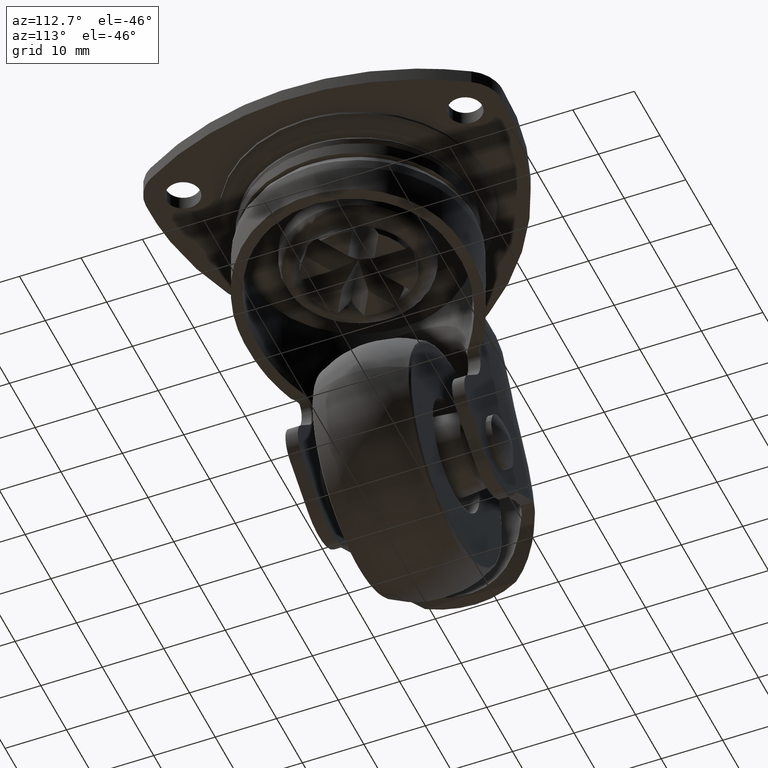
[diagram: clean part render]
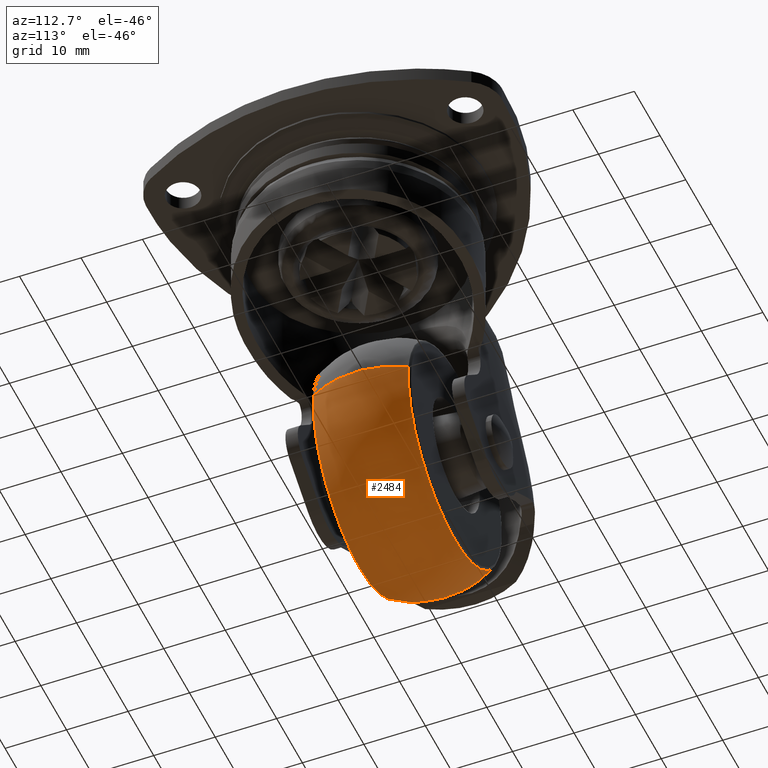
[diagram: same view with one face highlighted and labeled with its STEP entity id]
A machine part, auxiliary view. The second image highlights one B-rep face of the part: STEP entity #2484.
In plain terms, the highlighted face is a freeform B-spline surface patch.
Its self-contained STEP definition (entity closure, byte-faithful):
#1848=CARTESIAN_POINT('',(-6.583102481280289,7.741936135025106,-56.755388262646562));
#1849=VERTEX_POINT('',#1848);
#1863=CARTESIAN_POINT('',(-15.883204037254799,7.741950440309198,-31.526282511121970));
#1864=VERTEX_POINT('',#1863);
#1865=CARTESIAN_POINT('',(-6.583102481280288,7.741936135025106,-56.755388262646562));
#1866=CARTESIAN_POINT('',(-18.002229059907609,7.741938576398435,-52.268876010028563));
#1867=CARTESIAN_POINT('',(-18.002228438981501,7.741945580525633,-40.000006500542682));
#1868=CARTESIAN_POINT('',(-18.002228211145198,7.741948150548680,-35.498192566793705));
#1869=CARTESIAN_POINT('',(-15.883204037254806,7.741950440309198,-31.526282511121966));
#1877=(BOUNDED_CURVE()B_SPLINE_CURVE(2,(#1865,#1866,#1867,#1868,#1869),.UNSPECIFIED.,.F.,.U.)B_SPLINE_CURVE_WITH_KNOTS((3,2,3),(0.562091870105445,0.750000000000000,0.830114600128736),.UNSPECIFIED.)CURVE()GEOMETRIC_REPRESENTATION_ITEM()RATIONAL_B_SPLINE_CURVE((0.890644758050249,0.779851931975869,1.0,0.906139907577367,0.872436325334618))REPRESENTATION_ITEM(''));
#1878=EDGE_CURVE('',#1849,#1864,#1877,.T.);
#1971=CARTESIAN_POINT('',(0.0,7.741957127476519,-21.997782324370629));
#1972=VERTEX_POINT('',#1971);
#1973=CARTESIAN_POINT('',(-15.883204037254806,7.741950440309198,-31.526282511121966));
#1974=CARTESIAN_POINT('',(-10.799726583100981,7.741956639457517,-21.997782739919185));
#1975=CARTESIAN_POINT('',(0.0,7.741957127476519,-21.997782324370629));
#1983=(BOUNDED_CURVE()B_SPLINE_CURVE(2,(#1973,#1974,#1975),.UNSPECIFIED.,.F.,.U.)B_SPLINE_CURVE_WITH_KNOTS((3,3),(0.830114600128736,1.0),.UNSPECIFIED.)CURVE()GEOMETRIC_REPRESENTATION_ITEM()RATIONAL_B_SPLINE_CURVE((0.872436325334618,0.800966873609180,1.0))REPRESENTATION_ITEM(''));
#1984=EDGE_CURVE('',#1864,#1972,#1983,.T.);
#1986=CARTESIAN_POINT('',(17.881824193208271,7.741935547322694,-37.921386432191142));
#1987=VERTEX_POINT('',#1986);
#2001=CARTESIAN_POINT('',(0.0,7.741935547366899,-58.002229607473851));
#2002=VERTEX_POINT('',#2001);
#2003=CARTESIAN_POINT('',(17.881824193208274,7.741935547322695,-37.921386432191142));
#2004=CARTESIAN_POINT('',(18.002229607473851,7.741935547366899,-38.957205924366598));
#2005=CARTESIAN_POINT('',(18.002229607473851,7.741935547366899,-40.0));
#2006=CARTESIAN_POINT('',(18.002229607473854,7.741935547366898,-58.002229607473836));
#2007=CARTESIAN_POINT('',(0.0,7.741935547366899,-58.002229607473851));
#2015=(BOUNDED_CURVE()B_SPLINE_CURVE(2,(#2003,#2004,#2005,#2006,#2007),.UNSPECIFIED.,.F.,.U.)B_SPLINE_CURVE_WITH_KNOTS((3,2,3),(0.229999999999810,0.250000000000000,0.500000000000000),.UNSPECIFIED.)CURVE()GEOMETRIC_REPRESENTATION_ITEM()RATIONAL_B_SPLINE_CURVE((0.956886118190286,0.976568542494701,1.0,0.707106781186547,1.0))REPRESENTATION_ITEM(''));
#2016=EDGE_CURVE('',#1987,#2002,#2015,.T.);
#2018=CARTESIAN_POINT('',(0.0,7.741935547366899,-58.002229607473851));
#2019=CARTESIAN_POINT('',(-3.409627358578136,7.741935547366899,-58.002229607473843));
#2020=CARTESIAN_POINT('',(-6.583102481280289,7.741936135025106,-56.755388262646548));
#2028=(BOUNDED_CURVE()B_SPLINE_CURVE(2,(#2018,#2019,#2020),.UNSPECIFIED.,.F.,.U.)B_SPLINE_CURVE_WITH_KNOTS((3,3),(0.500000000000000,0.562091870105445),.UNSPECIFIED.)CURVE()GEOMETRIC_REPRESENTATION_ITEM()RATIONAL_B_SPLINE_CURVE((1.0,0.927254849210678,0.890644758050248))REPRESENTATION_ITEM(''));
#2029=EDGE_CURVE('',#2002,#1849,#2028,.T.);
#2058=CARTESIAN_POINT('',(-15.665247768531840,-7.741936419467464,-48.870190745649680));
#2059=VERTEX_POINT('',#2058);
#2060=CARTESIAN_POINT('',(0.0,-7.741939943948433,-21.997772798119961));
#2061=VERTEX_POINT('',#2060);
#2062=CARTESIAN_POINT('',(-15.665247768531840,-7.741936419467464,-48.870190745649687));
#2063=CARTESIAN_POINT('',(-18.002229675233554,-7.741937127626840,-44.742952079038680));
#2064=CARTESIAN_POINT('',(-18.002229675233551,-7.741937714901827,-40.000001236676752));
#2065=CARTESIAN_POINT('',(-18.002229675233544,-7.741939943948433,-21.997772798119961));
#2066=CARTESIAN_POINT('',(0.0,-7.741939943948433,-21.997772798119961));
#2074=(BOUNDED_CURVE()B_SPLINE_CURVE(2,(#2062,#2063,#2064,#2065,#2066),.UNSPECIFIED.,.F.,.U.)B_SPLINE_CURVE_WITH_KNOTS((3,2,3),(0.666016366175468,0.750000000000000,1.0),.UNSPECIFIED.)CURVE()GEOMETRIC_REPRESENTATION_ITEM()RATIONAL_B_SPLINE_CURVE((0.869321283383865,0.901607052645930,1.0,0.707106781186548,1.0))REPRESENTATION_ITEM(''));
#2075=EDGE_CURVE('',#2059,#2061,#2074,.T.);
#2178=CARTESIAN_POINT('',(0.0,-7.741935485855220,-58.002229675233551));
#2179=VERTEX_POINT('',#2178);
#2180=CARTESIAN_POINT('',(0.0,-7.741935485855220,-58.002229675233551));
#2181=CARTESIAN_POINT('',(-10.494380266970438,-7.741935485855221,-58.002229675233551));
#2182=CARTESIAN_POINT('',(-15.665247768531831,-7.741936419467464,-48.870190745649687));
#2190=(BOUNDED_CURVE()B_SPLINE_CURVE(2,(#2180,#2181,#2182),.UNSPECIFIED.,.F.,.U.)B_SPLINE_CURVE_WITH_KNOTS((3,3),(0.500000000000000,0.666016366175468),.UNSPECIFIED.)CURVE()GEOMETRIC_REPRESENTATION_ITEM()RATIONAL_B_SPLINE_CURVE((1.0,0.805499728540618,0.869321283383865))REPRESENTATION_ITEM(''));
#2191=EDGE_CURVE('',#2179,#2059,#2190,.T.);
#2193=CARTESIAN_POINT('',(17.881824247661068,-7.741935478695812,-37.921386425865101));
#2194=VERTEX_POINT('',#2193);
#2195=CARTESIAN_POINT('',(17.881824247661072,-7.741935478695812,-37.921386425865101));
#2196=CARTESIAN_POINT('',(18.002229675233547,-7.741935485855222,-38.957205920445190));
#2197=CARTESIAN_POINT('',(18.002229675233551,-7.741935485855220,-40.0));
#2198=CARTESIAN_POINT('',(18.002229675233544,-7.741935485855221,-58.002229675233544));
#2199=CARTESIAN_POINT('',(0.0,-7.741935485855220,-58.002229675233551));
#2207=(BOUNDED_CURVE()B_SPLINE_CURVE(2,(#2195,#2196,#2197,#2198,#2199),.UNSPECIFIED.,.F.,.U.)B_SPLINE_CURVE_WITH_KNOTS((3,2,3),(0.229999999999878,0.250000000000000,0.500000000000000),.UNSPECIFIED.)CURVE()GEOMETRIC_REPRESENTATION_ITEM()RATIONAL_B_SPLINE_CURVE((0.956886118190420,0.976568542494781,1.0,0.707106781186548,1.0))REPRESENTATION_ITEM(''));
#2208=EDGE_CURVE('',#2194,#2179,#2207,.T.);
#2414=CARTESIAN_POINT('',(17.496555866815406,8.405296508026964,-37.966171113185844));
#2415=CARTESIAN_POINT('',(22.651138917050353,0.000011710979316,-37.366993767264077));
#2416=CARTESIAN_POINT('',(17.496566266471842,-8.405279549876294,-37.966169904312416));
#2417=CARTESIAN_POINT('',(17.614367066160280,8.405296508026964,-38.979673401622293));
#2418=CARTESIAN_POINT('',(22.803657953520059,0.000011710979316,-38.679079488755335));
#2419=CARTESIAN_POINT('',(17.614377535841715,-8.405279549876294,-38.979672795157477));
#2420=CARTESIAN_POINT('',(17.614367066160284,8.405296508026964,-39.999999999999993));
#2421=CARTESIAN_POINT('',(22.803657953520073,0.000011710979316,-40.000000000000007));
#2422=CARTESIAN_POINT('',(17.614377535841708,-8.405279549876292,-40.0));
#2423=CARTESIAN_POINT('',(17.614367066160295,8.405296508026964,-57.614367066160298));
#2424=CARTESIAN_POINT('',(22.803657953520066,0.000011710979316,-62.803657953520080));
#2425=CARTESIAN_POINT('',(17.614377535841708,-8.405279549876294,-57.614377535841719));
#2426=CARTESIAN_POINT('',(0.0,8.405296508026964,-57.614367066160291));
#2427=CARTESIAN_POINT('',(0.0,0.000011710979316,-62.803657953520094));
#2428=CARTESIAN_POINT('',(0.0,-8.405279549876292,-57.614377535841719));
#2429=CARTESIAN_POINT('',(-17.614367066160295,8.405296508026964,-57.614367066160298));
#2430=CARTESIAN_POINT('',(-22.803657953520066,0.000011710979316,-62.803657953520080));
#2431=CARTESIAN_POINT('',(-17.614377535841708,-8.405279549876294,-57.614377535841719));
#2432=CARTESIAN_POINT('',(-17.614367066160284,8.405296508026964,-39.999999999999993));
#2433=CARTESIAN_POINT('',(-22.803657953520073,0.000011710979316,-40.000000000000007));
#2434=CARTESIAN_POINT('',(-17.614377535841708,-8.405279549876292,-40.0));
#2435=CARTESIAN_POINT('',(-17.614367066160295,8.405296508026964,-22.385632933839709));
#2436=CARTESIAN_POINT('',(-22.803657953520066,0.000011710979316,-17.196342046479927));
#2437=CARTESIAN_POINT('',(-17.614377535841708,-8.405279549876294,-22.385622464158299));
#2438=CARTESIAN_POINT('',(0.0,8.405296508026964,-22.385632933839716));
#2439=CARTESIAN_POINT('',(0.0,0.000011710979316,-17.196342046479931));
#2440=CARTESIAN_POINT('',(0.0,-8.405279549876292,-22.385622464158288));
#2448=(BOUNDED_SURFACE()B_SPLINE_SURFACE(2,2,((#2414,#2417,#2420,#2423,#2426,#2429,#2432,#2435,#2438),(#2415,#2418,#2421,#2424,#2427,#2430,#2433,#2436,#2439),(#2416,#2419,#2422,#2425,#2428,#2431,#2434,#2437,#2440)),.UNSPECIFIED.,.F.,.F.,.U.)B_SPLINE_SURFACE_WITH_KNOTS((3,3),(3,2,2,2,3),(0.0,18.164775818489101),(0.0,2.650966246152558,35.788051235994160,68.925136225835772,102.062221215677400),.UNSPECIFIED.)GEOMETRIC_REPRESENTATION_ITEM()RATIONAL_B_SPLINE_SURFACE(((0.941373388125241,0.960736723859228,0.983788313102748,0.695643387447028,0.983788313102748,0.695643387447028,0.983788313102748,0.695643387447028,0.983788313102748),(0.801012844669571,0.817489070611609,0.837103624525098,0.591921649457534,0.837103624525098,0.591921649457534,0.837103624525098,0.591921649457534,0.837103624525098),(0.941373055317993,0.960736384206388,0.983787965300394,0.695643141513624,0.983787965300394,0.695643141513624,0.983787965300394,0.695643141513624,0.983787965300394)))REPRESENTATION_ITEM('')SURFACE());
#2449=ORIENTED_EDGE('',*,*,#2016,.F.);
#2450=CARTESIAN_POINT('',(17.881824193208278,7.741935547322694,-37.921386432191149));
#2451=CARTESIAN_POINT('',(22.133767149096187,0.000000049448459,-37.427133372663270));
#2452=CARTESIAN_POINT('',(17.881824247661072,-7.741935478695813,-37.921386425865101));
#2460=(BOUNDED_CURVE()B_SPLINE_CURVE(2,(#2450,#2451,#2452),.UNSPECIFIED.,.F.,.U.)B_SPLINE_CURVE_WITH_KNOTS((3,3),(0.362871079318848,0.637128919148161),.UNSPECIFIED.)CURVE()GEOMETRIC_REPRESENTATION_ITEM()RATIONAL_B_SPLINE_CURVE((0.929203502129415,0.813182549956654,0.929203500832395))REPRESENTATION_ITEM(''));
#2461=EDGE_CURVE('',#1987,#2194,#2460,.T.);
#2462=ORIENTED_EDGE('',*,*,#2461,.T.);
#2463=ORIENTED_EDGE('',*,*,#2208,.T.);
#2464=ORIENTED_EDGE('',*,*,#2191,.T.);
#2465=ORIENTED_EDGE('',*,*,#2075,.T.);
#2466=CARTESIAN_POINT('',(0.0,7.741957127476519,-21.997782324370625));
#2467=CARTESIAN_POINT('',(0.0,0.000011225336770,-17.717188018067752));
#2468=CARTESIAN_POINT('',(0.0,-7.741939943948433,-21.997772798119961));
#2476=(BOUNDED_CURVE()B_SPLINE_CURVE(2,(#2466,#2467,#2468),.UNSPECIFIED.,.F.,.U.)B_SPLINE_CURVE_WITH_KNOTS((3,3),(0.362870642543442,0.637129009451164),.UNSPECIFIED.)CURVE()GEOMETRIC_REPRESENTATION_ITEM()RATIONAL_B_SPLINE_CURVE((0.971070490008239,0.849821427570696,0.971070182303686))REPRESENTATION_ITEM(''));
#2477=EDGE_CURVE('',#1972,#2061,#2476,.T.);
#2478=ORIENTED_EDGE('',*,*,#2477,.F.);
#2479=ORIENTED_EDGE('',*,*,#1984,.F.);
#2480=ORIENTED_EDGE('',*,*,#1878,.F.);
#2481=ORIENTED_EDGE('',*,*,#2029,.F.);
#2482=EDGE_LOOP('',(#2449,#2462,#2463,#2464,#2465,#2478,#2479,#2480,#2481));
#2483=FACE_OUTER_BOUND('',#2482,.T.);
#2484=ADVANCED_FACE('',(#2483),#2448,.T.);